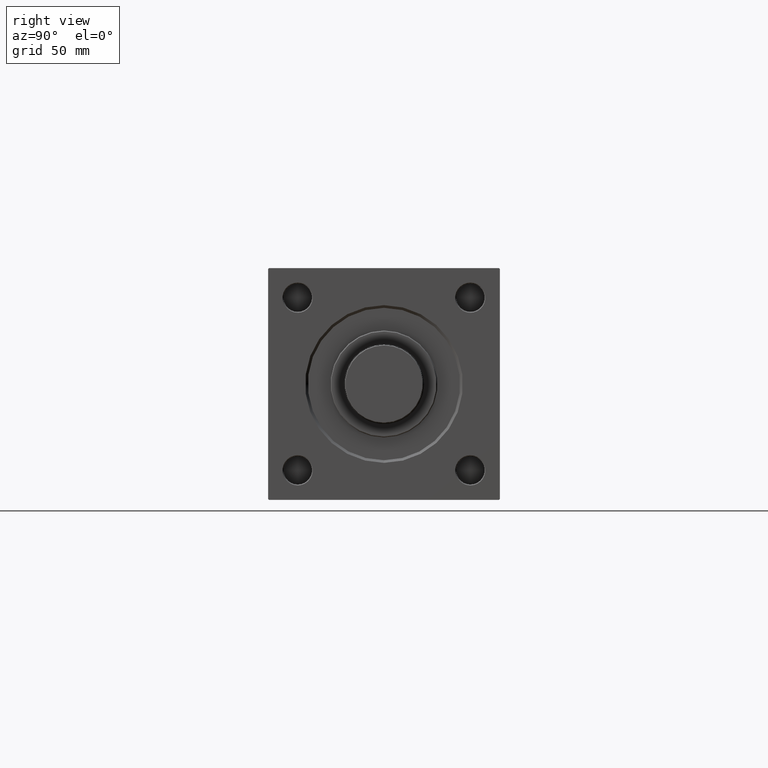
[diagram: clean part render]
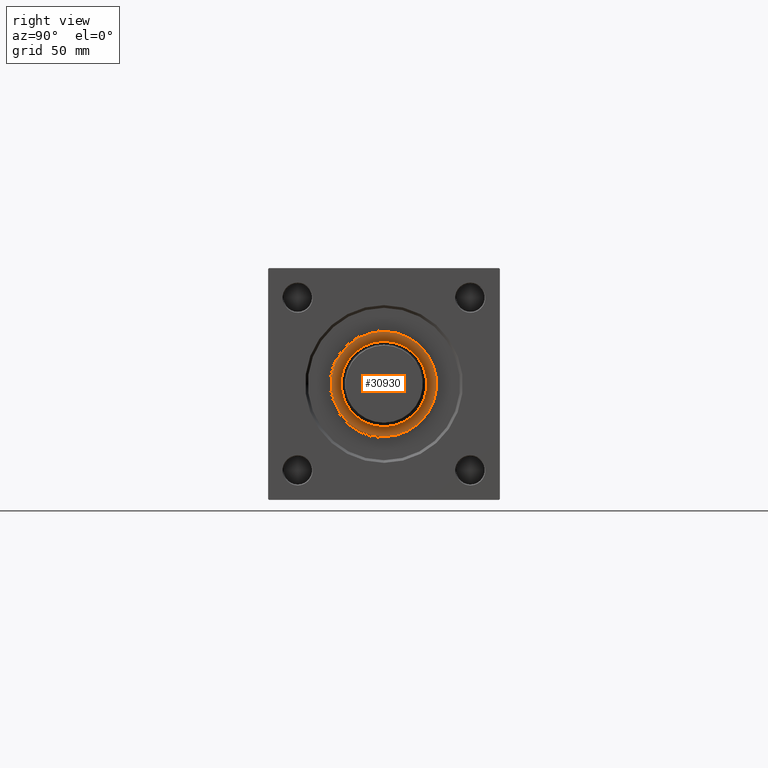
[diagram: same view with one face highlighted and labeled with its STEP entity id]
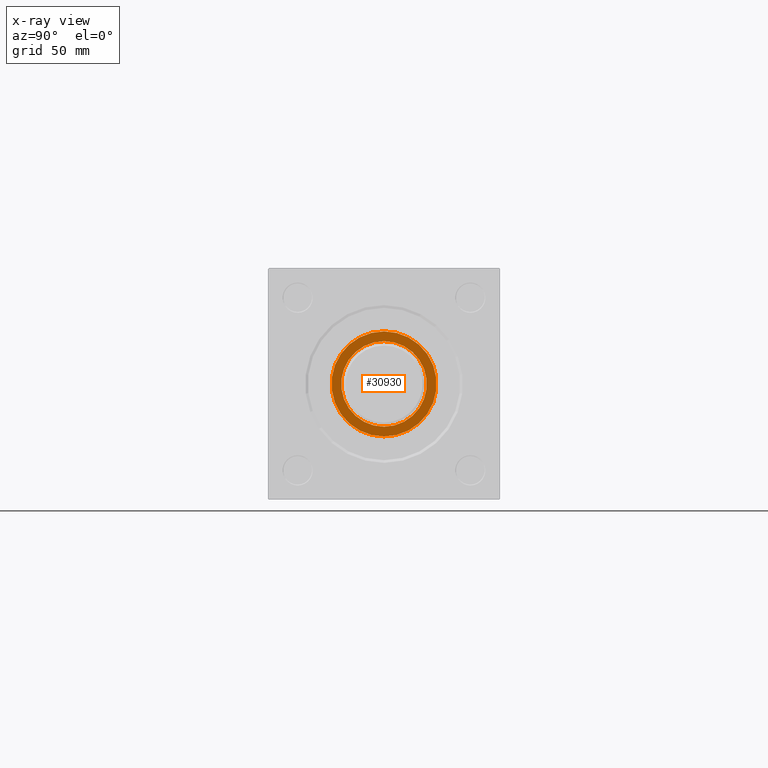
[diagram: x-ray of the same camera — body ghosted, the highlighted face saturated]
A machine part, right view. The second image highlights one B-rep face of the part: STEP entity #30930.
The next image is the same camera in x-ray: the body ghosted, the highlighted face saturated — about 0% of this face is hidden behind the body in this view.
In plain terms, the highlighted planar face has unit normal (1, 0, 0).
Its self-contained STEP definition (entity closure, byte-faithful):
#1179 = AXIS2_PLACEMENT_3D ( 'NONE', #26237, #42012, #22365 ) ;
#5333 = DIRECTION ( 'NONE',  ( 0.000000000000000000, 0.000000000000000000, 1.000000000000000000 ) ) ;
#8081 = CIRCLE ( 'NONE', #9757, 24.00000000000000355 ) ;
#9057 = ORIENTED_EDGE ( 'NONE', *, *, #24890, .F. ) ;
#9757 = AXIS2_PLACEMENT_3D ( 'NONE', #23489, #5333, #16952 ) ;
#10625 = CARTESIAN_POINT ( 'NONE',  ( 0.000000000000000000, 0.000000000000000000, 37.69999999999999574 ) ) ;
#10672 = CARTESIAN_POINT ( 'NONE',  ( 0.000000000000000000, 0.000000000000000000, 37.69999999999999574 ) ) ;
#13769 = EDGE_CURVE ( 'NONE', #30121, #20183, #8081, .T. ) ;
#14247 = FACE_OUTER_BOUND ( 'NONE', #28580, .T. ) ;
#14500 = PLANE ( 'NONE',  #39757 ) ;
#16952 = DIRECTION ( 'NONE',  ( 1.000000000000000000, 0.000000000000000000, 0.000000000000000000 ) ) ;
#18901 = EDGE_LOOP ( 'NONE', ( #21465, #9057 ) ) ;
#19058 = AXIS2_PLACEMENT_3D ( 'NONE', #10625, #38277, #38515 ) ;
#20112 = CIRCLE ( 'NONE', #1179, 29.50000000000000000 ) ;
#20183 = VERTEX_POINT ( 'NONE', #47498 ) ;
#21218 = CARTESIAN_POINT ( 'NONE',  ( -29.50000000000000000, 0.000000000000000000, 37.69999999999999574 ) ) ;
#21360 = ORIENTED_EDGE ( 'NONE', *, *, #35602, .T. ) ;
#21465 = ORIENTED_EDGE ( 'NONE', *, *, #13769, .F. ) ;
#22365 = DIRECTION ( 'NONE',  ( 1.000000000000000000, 0.000000000000000000, 0.000000000000000000 ) ) ;
#23489 = CARTESIAN_POINT ( 'NONE',  ( 0.000000000000000000, 0.000000000000000000, 37.69999999999999574 ) ) ;
#24890 = EDGE_CURVE ( 'NONE', #20183, #30121, #50430, .T. ) ;
#24997 = CARTESIAN_POINT ( 'NONE',  ( 29.50000000000000000, 3.643324227463375391E-15, 37.69999999999999574 ) ) ;
#26237 = CARTESIAN_POINT ( 'NONE',  ( 0.000000000000000000, 0.000000000000000000, 37.69999999999999574 ) ) ;
#28580 = EDGE_LOOP ( 'NONE', ( #21360, #48875 ) ) ;
#30121 = VERTEX_POINT ( 'NONE', #50448 ) ;
#30786 = CIRCLE ( 'NONE', #31621, 29.50000000000000000 ) ;
#30930 = ADVANCED_FACE ( 'NONE', ( #50151, #14247 ), #14500, .T. ) ;
#31621 = AXIS2_PLACEMENT_3D ( 'NONE', #10672, #38317, #45296 ) ;
#33507 = EDGE_CURVE ( 'NONE', #38063, #43922, #30786, .T. ) ;
#35602 = EDGE_CURVE ( 'NONE', #43922, #38063, #20112, .T. ) ;
#37255 = DIRECTION ( 'NONE',  ( 0.000000000000000000, 0.000000000000000000, 1.000000000000000000 ) ) ;
#37767 = DIRECTION ( 'NONE',  ( 1.000000000000000000, 0.000000000000000000, -0.000000000000000000 ) ) ;
#38063 = VERTEX_POINT ( 'NONE', #24997 ) ;
#38277 = DIRECTION ( 'NONE',  ( 0.000000000000000000, 0.000000000000000000, 1.000000000000000000 ) ) ;
#38317 = DIRECTION ( 'NONE',  ( 0.000000000000000000, 0.000000000000000000, 1.000000000000000000 ) ) ;
#38515 = DIRECTION ( 'NONE',  ( 1.000000000000000000, 0.000000000000000000, 0.000000000000000000 ) ) ;
#39757 = AXIS2_PLACEMENT_3D ( 'NONE', #42409, #37255, #37767 ) ;
#42012 = DIRECTION ( 'NONE',  ( 0.000000000000000000, 0.000000000000000000, 1.000000000000000000 ) ) ;
#42409 = CARTESIAN_POINT ( 'NONE',  ( 0.000000000000000000, 0.000000000000000000, 37.69999999999999574 ) ) ;
#43922 = VERTEX_POINT ( 'NONE', #21218 ) ;
#45296 = DIRECTION ( 'NONE',  ( 1.000000000000000000, 0.000000000000000000, 0.000000000000000000 ) ) ;
#47498 = CARTESIAN_POINT ( 'NONE',  ( -24.00000000000000355, 2.939152317953648289E-15, 37.69999999999999574 ) ) ;
#48875 = ORIENTED_EDGE ( 'NONE', *, *, #33507, .T. ) ;
#50151 = FACE_BOUND ( 'NONE', #18901, .T. ) ;
#50430 = CIRCLE ( 'NONE', #19058, 24.00000000000000355 ) ;
#50448 = CARTESIAN_POINT ( 'NONE',  ( 24.00000000000000355, 0.000000000000000000, 37.69999999999999574 ) ) ;